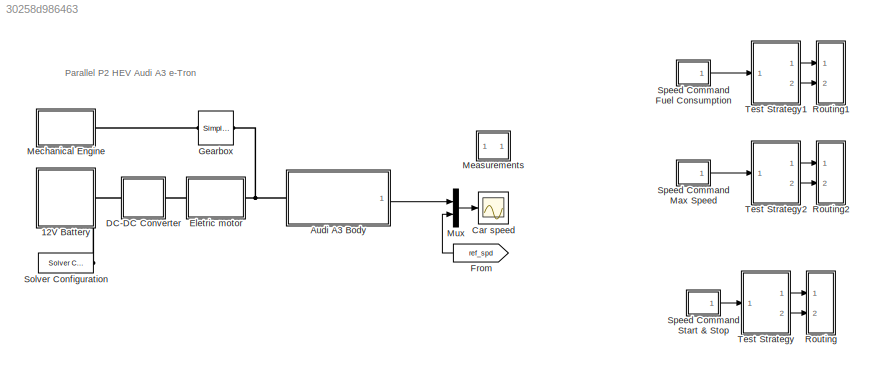
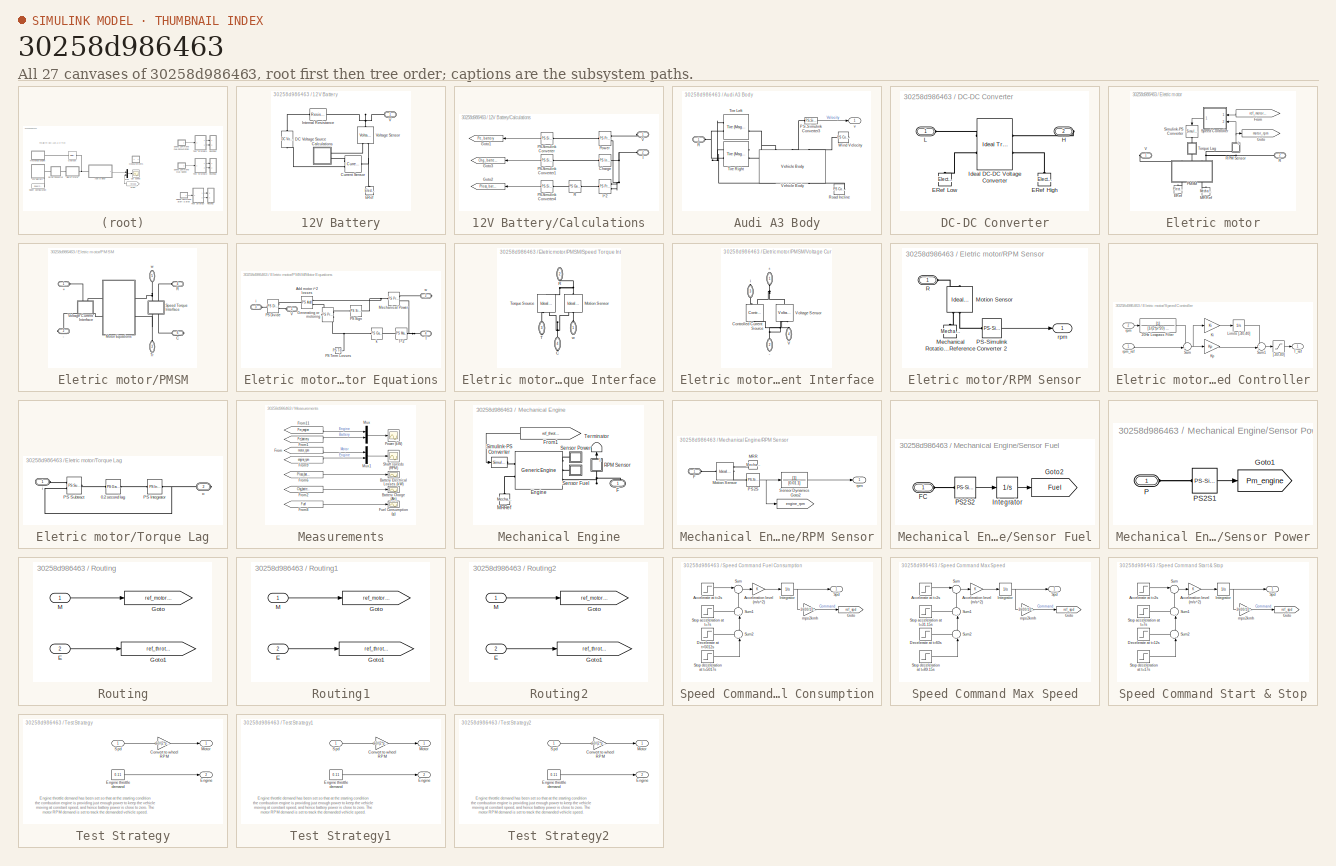
[diagram: thumbnail index - all 27 canvases of the model, root first then tree order]
MODEL slx_30258d986463
KIND model
CONFIG AbsTol = 1e-3
CONFIG EnableMultiTasking = on
CONFIG FixedStep = auto
CONFIG MaxStep = auto
CONFIG MinStep = auto
CONFIG RelTol = 1e-3
CONFIG SampleTimeConstraint = Unconstrained
CONFIG Solver = VariableStepAuto
CONFIG SolverName = VariableStepAuto
CONFIG StartTime = 0.0
CONFIG StopTime = 100
WORKSPACE source: MATLAB code (in-file)
WORKSPACE v0 = 15
WORKSPACE wheel_radius = 0.3
WORKSPACE k = 1e-2  (= 0.01)
WORKSPACE t_torque = 0.02
WORKSPACE gear_ratio = 4.27
BLOCK [SubSystem] 12V Battery
  Ports = [0, 0, 0, 0, 0, 1]
  RequestExecContextInheritance = off
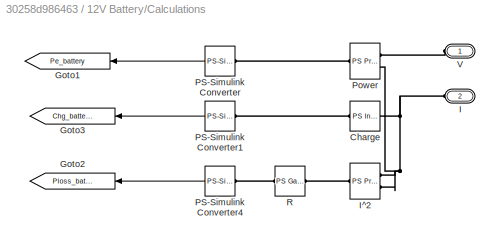
BLOCK [SubSystem] 12V Battery/Calculations
  Ports = [0, 0, 0, 0, 0, 2]
  RequestExecContextInheritance = off
BLOCK [Reference] 12V Battery/Calculations/Charge  REF=fl_lib/Physical Signals/Linear Operators/PS Integrator
  Ports = [0, 0, 0, 0, 0, 1, 1]
  SourceBlock = fl_lib/Physical Signals/Linear Operators/PS Integrator
  SourceProductBaseCode = SS
  SourceProductName = Simscape
  SourceType = PS Integrator
BLOCK [Goto] 12V Battery/Calculations/Goto1
  GotoTag = Pe_battery
  TagVisibility = global
BLOCK [Goto] 12V Battery/Calculations/Goto2
  GotoTag = Ploss_battery
  TagVisibility = global
BLOCK [Goto] 12V Battery/Calculations/Goto3
  GotoTag = Chg_battery
  TagVisibility = global
BLOCK [PMIOPort] 12V Battery/Calculations/I
  Port = 2
  Side = Left
BLOCK [Reference] 12V Battery/Calculations/I^2  REF=fl_lib/Physical Signals/Functions/PS Product
  Ports = [0, 0, 0, 0, 0, 2, 1]
  SourceBlock = fl_lib/Physical Signals/Functions/PS Product
  SourceProductBaseCode = SS
  SourceProductName = Simscape
  SourceType = PS Product
BLOCK [Reference] 12V Battery/Calculations/PS-Simulink Converter  REF=nesl_utility/PS-Simulink
Converter
  Ports = [0, 1, 0, 0, 0, 1]
  SourceBlock = nesl_utility/PS-Simulink\nConverter
  SourceProductBaseCode = SS
  SourceProductName = Simscape
  SourceType = PS-Simulink\nConverter
BLOCK [Reference] 12V Battery/Calculations/PS-Simulink Converter1  REF=nesl_utility/PS-Simulink
Converter
  Ports = [0, 1, 0, 0, 0, 1]
  SourceBlock = nesl_utility/PS-Simulink\nConverter
  SourceProductBaseCode = SS
  SourceProductName = Simscape
  SourceType = PS-Simulink\nConverter
BLOCK [Reference] 12V Battery/Calculations/PS-Simulink Converter4  REF=nesl_utility/PS-Simulink
Converter
  Ports = [0, 1, 0, 0, 0, 1]
  SourceBlock = nesl_utility/PS-Simulink\nConverter
  SourceProductBaseCode = SS
  SourceProductName = Simscape
  SourceType = PS-Simulink\nConverter
BLOCK [Reference] 12V Battery/Calculations/Power  REF=fl_lib/Physical Signals/Functions/PS Product
  Ports = [0, 0, 0, 0, 0, 2, 1]
  SourceBlock = fl_lib/Physical Signals/Functions/PS Product
  SourceProductBaseCode = SS
  SourceProductName = Simscape
  SourceType = PS Product
BLOCK [Reference] 12V Battery/Calculations/R  REF=fl_lib/Physical Signals/Functions/PS Gain
  Ports = [0, 0, 0, 0, 0, 1, 1]
  SourceBlock = fl_lib/Physical Signals/Functions/PS Gain
  SourceProductBaseCode = SS
  SourceProductName = Simscape
  SourceType = PS Gain
BLOCK [PMIOPort] 12V Battery/Calculations/V
  Side = Left
BLOCK [Reference] 12V Battery/Current Sensor  REF=fl_lib/Electrical/Electrical Sensors/Current Sensor
  Ports = [0, 0, 0, 0, 0, 1, 2]
  SourceBlock = fl_lib/Electrical/Electrical Sensors/Current Sensor
  SourceProductBaseCode = SS
  SourceProductName = Simscape
  SourceType = Current Sensor
BLOCK [Reference] 12V Battery/DC Voltage Source  REF=fl_lib/Electrical/Electrical Sources/DC Voltage Source
  Ports = [0, 0, 0, 0, 0, 1, 1]
  SourceBlock = fl_lib/Electrical/Electrical Sources/DC Voltage Source
  SourceProductBaseCode = SS
  SourceProductName = Simscape
  SourceType = DC Voltage Source
BLOCK [Reference] 12V Battery/ERef  REF=fl_lib/Electrical/Electrical Elements/Electrical Reference
  Ports = [0, 0, 0, 0, 0, 1]
  SourceBlock = fl_lib/Electrical/Electrical Elements/Electrical Reference
  SourceProductBaseCode = SS
  SourceProductName = Simscape
  SourceType = Electrical Reference
BLOCK [Reference] 12V Battery/Internal Resistance  REF=fl_lib/Electrical/Electrical Elements/Resistor
  Ports = [0, 0, 0, 0, 0, 1, 1]
  SourceBlock = fl_lib/Electrical/Electrical Elements/Resistor
  SourceProductBaseCode = SS
  SourceProductName = Simscape
  SourceType = Resistor
BLOCK [PMIOPort] 12V Battery/V
  Side = Left
BLOCK [Reference] 12V Battery/Voltage Sensor  REF=fl_lib/Electrical/Electrical Sensors/Voltage Sensor
  Ports = [0, 0, 0, 0, 0, 1, 2]
  SourceBlock = fl_lib/Electrical/Electrical Sensors/Voltage Sensor
  SourceProductBaseCode = SS
  SourceProductName = Simscape
  SourceType = Voltage Sensor
BLOCK [SubSystem] Audi A3 Body
  Ports = [0, 1, 0, 0, 0, 1]
  RequestExecContextInheritance = off
BLOCK [Reference] Audi A3 Body/PS-Simulink Converter3  REF=nesl_utility/PS-Simulink
Converter
  Ports = [0, 1, 0, 0, 0, 1]
  SourceBlock = nesl_utility/PS-Simulink\nConverter
  SourceProductBaseCode = SS
  SourceProductName = Simscape
  SourceType = PS-Simulink\nConverter
BLOCK [PMIOPort] Audi A3 Body/R
  Side = Left
BLOCK [Reference] Audi A3 Body/Road Incline  REF=fl_lib/Physical Signals/Sources/PS Constant
  Ports = [0, 0, 0, 0, 0, 0, 1]
  SourceBlock = fl_lib/Physical Signals/Sources/PS Constant
  SourceProductBaseCode = SS
  SourceProductName = Simscape
  SourceType = PS Constant
BLOCK [Reference] Audi A3 Body/Tire Left  REF=sdl_lib/Tires & Vehicles/Tire (Magic Formula)
  Ports = [0, 0, 0, 0, 0, 2, 2]
  SourceBlock = sdl_lib/Tires & Vehicles/Tire (Magic Formula)
  SourceProductBaseCode = LD
  SourceProductName = Simscape Driveline
  SourceType = Tire (Magic Formula)
BLOCK [Reference] Audi A3 Body/Tire Right  REF=sdl_lib/Tires & Vehicles/Tire (Magic Formula)
  Ports = [0, 0, 0, 0, 0, 2, 2]
  SourceBlock = sdl_lib/Tires & Vehicles/Tire (Magic Formula)
  SourceProductBaseCode = LD
  SourceProductName = Simscape Driveline
  SourceType = Tire (Magic Formula)
BLOCK [Reference] Audi A3 Body/Vehicle Body  REF=sdl_lib/Tires & Vehicles/Vehicle Body
  Ports = [0, 0, 0, 0, 0, 3, 3]
  SourceBlock = sdl_lib/Tires & Vehicles/Vehicle Body
  SourceProductBaseCode = LD
  SourceProductName = Simscape Driveline
  SourceType = Vehicle Body
BLOCK [Reference] Audi A3 Body/Wind Velocity  REF=fl_lib/Physical Signals/Sources/PS Constant
  Ports = [0, 0, 0, 0, 0, 0, 1]
  SourceBlock = fl_lib/Physical Signals/Sources/PS Constant
  SourceProductBaseCode = SS
  SourceProductName = Simscape
  SourceType = PS Constant
BLOCK [Outport] Audi A3 Body/v
  IconDisplay = Port number
  VectorParamsAs1DForOutWhenUnconnected = off
BLOCK [Scope] Car speed
  Floating = off
  NumInputPorts = 1
  Ports = [1]
  ScopeSpecificationString = Simulink.scopes.TimeScopeBlockCfg('CurrentConfiguration', extmgr.ConfigurationSet(extmgr.Configuration('Core','General UI',true),extmgr.Configuration('Core','Source UI',true),extmgr.Configuration('Sources','WiredSimulink',true,'DataLoggingSaveFormat','StructureWithTime','DataLoggingMaxPoints','50000','DataLoggingLimitDataPoints',true,'DataLoggingDecimation','1','DataLoggingDecimateData',true),extm...<+1980ch>
BLOCK [SubSystem] DC-DC Converter
  Ports = [0, 0, 0, 0, 0, 1, 1]
  RequestExecContextInheritance = off
BLOCK [Reference] DC-DC Converter/ERef High  REF=fl_lib/Electrical/Electrical Elements/Electrical Reference
  Ports = [0, 0, 0, 0, 0, 1]
  SourceBlock = fl_lib/Electrical/Electrical Elements/Electrical Reference
  SourceProductBaseCode = SS
  SourceProductName = Simscape
  SourceType = Electrical Reference
BLOCK [Reference] DC-DC Converter/ERef Low  REF=fl_lib/Electrical/Electrical Elements/Electrical Reference
  Ports = [0, 0, 0, 0, 0, 1]
  SourceBlock = fl_lib/Electrical/Electrical Elements/Electrical Reference
  SourceProductBaseCode = SS
  SourceProductName = Simscape
  SourceType = Electrical Reference
BLOCK [PMIOPort] DC-DC Converter/H
  Port = 2
  Side = Right
BLOCK [Reference] DC-DC Converter/Ideal DC-DC Voltage Converter  REF=fl_lib/Electrical/Electrical Elements/Ideal Transformer
  Ports = [0, 0, 0, 0, 0, 2, 2]
  SourceBlock = fl_lib/Electrical/Electrical Elements/Ideal Transformer
  SourceProductBaseCode = SS
  SourceProductName = Simscape
  SourceType = Ideal Transformer
BLOCK [PMIOPort] DC-DC Converter/L
  Side = Left
  Tag = PMCPort
BLOCK [SubSystem] Eletric motor
  Ports = [0, 0, 0, 0, 0, 1, 1]
  RequestExecContextInheritance = off
BLOCK [Reference] Eletric motor/ERef  REF=fl_lib/Electrical/Electrical Elements/Electrical Reference
  Ports = [0, 0, 0, 0, 0, 1]
  SourceBlock = fl_lib/Electrical/Electrical Elements/Electrical Reference
  SourceProductBaseCode = SS
  SourceProductName = Simscape
  SourceType = Electrical Reference
BLOCK [From] Eletric motor/From
  GotoTag = ref_motor_rpm
  TagVisibility = global
BLOCK [Goto] Eletric motor/Goto
  GotoTag = motor_rpm
  TagVisibility = global
BLOCK [Reference] Eletric motor/MRRef  REF=fl_lib/Mechanical/Rotational Elements/Mechanical
Rotational Reference
  Ports = [0, 0, 0, 0, 0, 1]
  SourceBlock = fl_lib/Mechanical/Rotational Elements/Mechanical\nRotational Reference
  SourceProductBaseCode = SS
  SourceProductName = Simscape
  SourceType = Mechanical\nRotational Reference
BLOCK [SubSystem] Eletric motor/PMSM
  Ports = [0, 0, 0, 0, 0, 3, 3]
  RequestExecContextInheritance = off
BLOCK [PMIOPort] Eletric motor/PMSM/+
  Side = Left
BLOCK [PMIOPort] Eletric motor/PMSM/-
  Port = 2
  Side = Right
BLOCK [PMIOPort] Eletric motor/PMSM/C
  Port = 6
  Side = Right
BLOCK [SubSystem] Eletric motor/PMSM/Motor Equations
  Ports = [0, 0, 0, 0, 0, 2, 2]
  RequestExecContextInheritance = off
BLOCK [Reference] Eletric motor/PMSM/Motor Equations/Add motor i^2 losses  REF=fl_lib/Physical Signals/Functions/PS Add
  Ports = [0, 0, 0, 0, 0, 2, 1]
  SourceBlock = fl_lib/Physical Signals/Functions/PS Add
  SourceProductBaseCode = SS
  SourceProductName = Simscape
  SourceType = PS Add
BLOCK [Reference] Eletric motor/PMSM/Motor Equations/Generating or motoring  REF=fl_lib/Physical Signals/Functions/PS Product
  Ports = [0, 0, 0, 0, 0, 2, 1]
  SourceBlock = fl_lib/Physical Signals/Functions/PS Product
  SourceProductBaseCode = SS
  SourceProductName = Simscape
  SourceType = PS Product
BLOCK [Reference] Eletric motor/PMSM/Motor Equations/Mechanical Power  REF=fl_lib/Physical Signals/Functions/PS Product
  Ports = [0, 0, 0, 0, 0, 2, 1]
  SourceBlock = fl_lib/Physical Signals/Functions/PS Product
  SourceProductBaseCode = SS
  SourceProductName = Simscape
  SourceType = PS Product
BLOCK [Reference] Eletric motor/PMSM/Motor Equations/PS Divide  REF=fl_lib/Physical Signals/Functions/PS Divide
  Ports = [0, 0, 0, 0, 0, 2, 1]
  SourceBlock = fl_lib/Physical Signals/Functions/PS Divide
  SourceProductBaseCode = SS
  SourceProductName = Simscape
  SourceType = PS Divide
BLOCK [Reference] Eletric motor/PMSM/Motor Equations/PS Sign  REF=fl_lib/Physical Signals/Nonlinear Operators/PS Sign
  Ports = [0, 0, 0, 0, 0, 1, 1]
  SourceBlock = fl_lib/Physical Signals/Nonlinear Operators/PS Sign
  SourceProductBaseCode = SS
  SourceProductName = Simscape
  SourceType = PS Sign
BLOCK [Reference] Eletric motor/PMSM/Motor Equations/PS Term Losses  REF=fl_lib/Physical Signals/Sinks/PS Terminator
  Ports = [0, 0, 0, 0, 0, 1]
  SourceBlock = fl_lib/Physical Signals/Sinks/PS Terminator
  SourceProductBaseCode = SS
  SourceProductName = Simscape
  SourceType = PS Terminator
BLOCK [PMIOPort] Eletric motor/PMSM/Motor Equations/T
  Port = 4
  Side = Right
BLOCK [Reference] Eletric motor/PMSM/Motor Equations/T^2  REF=fl_lib/Physical Signals/Functions/PS Math Function
  Ports = [0, 0, 0, 0, 0, 1, 1]
  SourceBlock = fl_lib/Physical Signals/Functions/PS Math Function
  SourceProductBaseCode = SS
  SourceProductName = Simscape
  SourceType = PS Math Function
BLOCK [PMIOPort] Eletric motor/PMSM/Motor Equations/V
  Side = Left
BLOCK [PMIOPort] Eletric motor/PMSM/Motor Equations/i
  Port = 3
  Side = Left
BLOCK [Reference] Eletric motor/PMSM/Motor Equations/k  REF=fl_lib/Physical Signals/Functions/PS Gain
  Ports = [0, 0, 0, 0, 0, 1, 1]
  SourceBlock = fl_lib/Physical Signals/Functions/PS Gain
  SourceProductBaseCode = SS
  SourceProductName = Simscape
  SourceType = PS Gain
BLOCK [PMIOPort] Eletric motor/PMSM/Motor Equations/w
  Port = 2
  Side = Right
BLOCK [PMIOPort] Eletric motor/PMSM/R
  Port = 4
  Side = Left
BLOCK [SubSystem] Eletric motor/PMSM/Speed Torque Interface
  Ports = [0, 0, 0, 0, 0, 2, 2]
  RequestExecContextInheritance = off
BLOCK [PMIOPort] Eletric motor/PMSM/Speed Torque Interface/C
  Port = 4
  Side = Right
BLOCK [Reference] Eletric motor/PMSM/Speed Torque Interface/Motion Sensor  REF=fl_lib/Mechanical/Mechanical Sensors/Ideal Rotational
Motion Sensor
  Ports = [0, 0, 0, 0, 0, 1, 3]
  SourceBlock = fl_lib/Mechanical/Mechanical Sensors/Ideal Rotational\nMotion Sensor
  SourceProductBaseCode = SS
  SourceProductName = Simscape
  SourceType = Ideal Rotational\nMotion Sensor
BLOCK [PMIOPort] Eletric motor/PMSM/Speed Torque Interface/R
  Port = 2
  Side = Left
BLOCK [PMIOPort] Eletric motor/PMSM/Speed Torque Interface/T
  Port = 3
  Side = Right
BLOCK [Reference] Eletric motor/PMSM/Speed Torque Interface/Torque Source  REF=fl_lib/Mechanical/Mechanical Sources/Ideal Torque Source
  Ports = [0, 0, 0, 0, 0, 1, 2]
  SourceBlock = fl_lib/Mechanical/Mechanical Sources/Ideal Torque Source
  SourceProductBaseCode = SS
  SourceProductName = Simscape
  SourceType = Ideal Torque Source
BLOCK [PMIOPort] Eletric motor/PMSM/Speed Torque Interface/w
  Side = Left
BLOCK [PMIOPort] Eletric motor/PMSM/Tr
  Port = 3
  Side = Left
BLOCK [SubSystem] Eletric motor/PMSM/Voltage Current Interface
  Ports = [0, 0, 0, 0, 0, 2, 2]
  RequestExecContextInheritance = off
BLOCK [PMIOPort] Eletric motor/PMSM/Voltage Current Interface/+
  Side = Left
BLOCK [PMIOPort] Eletric motor/PMSM/Voltage Current Interface/-
  Port = 2
  Side = Right
BLOCK [Reference] Eletric motor/PMSM/Voltage Current Interface/Controlled Current Source  REF=fl_lib/Electrical/Electrical Sources/Controlled Current
Source
  Ports = [0, 0, 0, 0, 0, 1, 2]
  SourceBlock = fl_lib/Electrical/Electrical Sources/Controlled Current\nSource
  SourceProductBaseCode = SS
  SourceProductName = Simscape
  SourceType = Controlled Current\nSource
BLOCK [PMIOPort] Eletric motor/PMSM/Voltage Current Interface/V
  Port = 4
  Side = Left
BLOCK [Reference] Eletric motor/PMSM/Voltage Current Interface/Voltage Sensor  REF=fl_lib/Electrical/Electrical Sensors/Voltage Sensor
  Ports = [0, 0, 0, 0, 0, 1, 2]
  SourceBlock = fl_lib/Electrical/Electrical Sensors/Voltage Sensor
  SourceProductBaseCode = SS
  SourceProductName = Simscape
  SourceType = Voltage Sensor
BLOCK [PMIOPort] Eletric motor/PMSM/Voltage Current Interface/i
  Port = 3
  Side = Right
BLOCK [PMIOPort] Eletric motor/PMSM/w
  Port = 5
  Side = Right
BLOCK [PMIOPort] Eletric motor/R
  Port = 2
  Side = Left
BLOCK [SubSystem] Eletric motor/RPM Sensor
  Ports = [0, 1, 0, 0, 0, 1]
  RequestExecContextInheritance = off
BLOCK [Reference] Eletric motor/RPM Sensor/Mechanical Rotational Reference  REF=fl_lib/Mechanical/Rotational Elements/Mechanical
Rotational Reference
  Ports = [0, 0, 0, 0, 0, 1]
  SourceBlock = fl_lib/Mechanical/Rotational Elements/Mechanical\nRotational Reference
  SourceProductBaseCode = SS
  SourceProductName = Simscape
  SourceType = Mechanical\nRotational Reference
BLOCK [Reference] Eletric motor/RPM Sensor/Motion Sensor  REF=fl_lib/Mechanical/Mechanical Sensors/Ideal Rotational
Motion Sensor
  Ports = [0, 0, 0, 0, 0, 1, 3]
  SourceBlock = fl_lib/Mechanical/Mechanical Sensors/Ideal Rotational\nMotion Sensor
  SourceProductBaseCode = SS
  SourceProductName = Simscape
  SourceType = Ideal Rotational\nMotion Sensor
BLOCK [Reference] Eletric motor/RPM Sensor/PS-Simulink Converter 2  REF=nesl_utility/PS-Simulink
Converter
  Ports = [0, 1, 0, 0, 0, 1]
  SourceBlock = nesl_utility/PS-Simulink\nConverter
  SourceProductBaseCode = SS
  SourceProductName = Simscape
  SourceType = PS-Simulink\nConverter
BLOCK [PMIOPort] Eletric motor/RPM Sensor/R
  Side = Left
BLOCK [Outport] Eletric motor/RPM Sensor/rpm
  IconDisplay = Port number
  VectorParamsAs1DForOutWhenUnconnected = off
BLOCK [Reference] Eletric motor/Simulink-PS Converter  REF=nesl_utility/Simulink-PS
Converter
  Ports = [1, 0, 0, 0, 0, 0, 1]
  SourceBlock = nesl_utility/Simulink-PS\nConverter
  SourceProductBaseCode = SS
  SourceProductName = Simscape
  SourceType = Simulink-PS\nConverter
BLOCK [SubSystem] Eletric motor/Speed Controller
  Ports = [2, 1]
  RequestExecContextInheritance = off
BLOCK [TransferFcn] Eletric motor/Speed Controller/20Hz Lowpass Filter
  Denominator = [1/(2*pi*20) 1]
BLOCK [Gain] Eletric motor/Speed Controller/Ki
  Gain = Ki
  OutDataTypeStr = Inherit: Inherit via internal rule
  ParamDataTypeStr = Inherit: Inherit via internal rule
  SaturateOnIntegerOverflow = off
BLOCK [Gain] Eletric motor/Speed Controller/Kp
  Gain = Kp
  OutDataTypeStr = Inherit: Inherit via internal rule
  ParamDataTypeStr = Inherit: Inherit via internal rule
  SaturateOnIntegerOverflow = off
BLOCK [Integrator] Eletric motor/Speed Controller/Limits [-40,40]
  LimitOutput = on
  LowerSaturationLimit = -40
  Ports = [1, 1]
  UpperSaturationLimit = 40
BLOCK [Sum] Eletric motor/Speed Controller/Sum
  IconShape = round
  InputSameDT = off
  Inputs = -+|
  OutDataTypeStr = Inherit: Inherit via internal rule
  Ports = [2, 1]
  SaturateOnIntegerOverflow = off
BLOCK [Sum] Eletric motor/Speed Controller/Sum1
  IconShape = round
  InputSameDT = off
  Inputs = ++|
  OutDataTypeStr = Inherit: Inherit via internal rule
  Ports = [2, 1]
  SaturateOnIntegerOverflow = off
BLOCK [Outport] Eletric motor/Speed Controller/T_ref
  IconDisplay = Port number
  VectorParamsAs1DForOutWhenUnconnected = off
BLOCK [Saturate] Eletric motor/Speed Controller/[-40,40]
  InputPortMap = u0
  LowerLimit = speed_controller_lower_limit
  Ports = [1, 1]
  UpperLimit = speed_controller_upper_limit
BLOCK [Inport] Eletric motor/Speed Controller/rpm
  IconDisplay = Port number
  Port = 2
BLOCK [Inport] Eletric motor/Speed Controller/rpm_ref
  IconDisplay = Port number
BLOCK [SubSystem] Eletric motor/Torque Lag
  Ports = [0, 0, 0, 0, 0, 1, 1]
  RequestExecContextInheritance = off
BLOCK [Reference] Eletric motor/Torque Lag/0.2 second lag  REF=fl_lib/Physical Signals/Functions/PS Gain
  Ports = [0, 0, 0, 0, 0, 1, 1]
  SourceBlock = fl_lib/Physical Signals/Functions/PS Gain
  SourceProductBaseCode = SS
  SourceProductName = Simscape
  SourceType = PS Gain
BLOCK [Reference] Eletric motor/Torque Lag/PS Integrator  REF=fl_lib/Physical Signals/Linear Operators/PS Integrator
  Ports = [0, 0, 0, 0, 0, 1, 1]
  SourceBlock = fl_lib/Physical Signals/Linear Operators/PS Integrator
  SourceProductBaseCode = SS
  SourceProductName = Simscape
  SourceType = PS Integrator
BLOCK [Reference] Eletric motor/Torque Lag/PS Subtract  REF=fl_lib/Physical Signals/Functions/PS Subtract
  Ports = [0, 0, 0, 0, 0, 2, 1]
  SourceBlock = fl_lib/Physical Signals/Functions/PS Subtract
  SourceProductBaseCode = SS
  SourceProductName = Simscape
  SourceType = PS Subtract
BLOCK [PMIOPort] Eletric motor/Torque Lag/i
  Side = Left
BLOCK [PMIOPort] Eletric motor/Torque Lag/o
  Port = 2
  Side = Right
BLOCK [PMIOPort] Eletric motor/V
  Side = Right
BLOCK [From] From
  GotoTag = ref_spd
  TagVisibility = global
BLOCK [Reference] Gearbox  REF=sdl_lib/Gears/Simple Gear
  Ports = [0, 0, 0, 0, 0, 1, 1]
  SourceBlock = sdl_lib/Gears/Simple Gear
  SourceProductBaseCode = LD
  SourceProductName = Simscape Driveline
  SourceType = Simple Gear
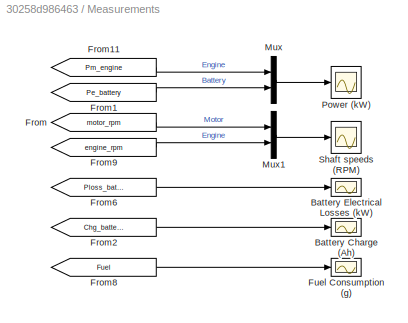
BLOCK [SubSystem] Measurements
  Ports = []
  RequestExecContextInheritance = off
BLOCK [Scope] Measurements/Battery Charge (Ah)
  Floating = off
  NumInputPorts = 1
  Ports = [1]
  ScopeSpecificationString = Simulink.scopes.TimeScopeBlockCfg('CurrentConfiguration', extmgr.ConfigurationSet(extmgr.Configuration('Core','General UI',true),extmgr.Configuration('Core','Source UI',true),extmgr.Configuration('Sources','WiredSimulink',true,'DataLoggingSaveFormat','StructureWithTime','DataLoggingLimitDataPoints',true,'DataLoggingDecimation','1','DataLoggingDecimateData',true,'DataLoggingVariableName','ScopeData...<+1808ch>
BLOCK [Scope] Measurements/Battery Electrical Losses (kW)
  Floating = off
  NumInputPorts = 1
  Ports = [1]
  ScopeSpecificationString = Simulink.scopes.TimeScopeBlockCfg('CurrentConfiguration', extmgr.ConfigurationSet(extmgr.Configuration('Core','General UI',true),extmgr.Configuration('Core','Source UI',true),extmgr.Configuration('Sources','WiredSimulink',true,'DataLoggingVariableName','ScopeData3','DataLoggingSaveFormat','StructureWithTime','DataLoggingMaxPoints','50000','DataLoggingLimitDataPoints',true,'DataLoggingDecimation','...<+1859ch>
BLOCK [From] Measurements/From
  GotoTag = motor_rpm
  TagVisibility = global
BLOCK [From] Measurements/From1
  GotoTag = Pe_battery
  TagVisibility = global
BLOCK [From] Measurements/From11
  GotoTag = Pm_engine
  TagVisibility = global
BLOCK [From] Measurements/From2
  GotoTag = Chg_battery
  TagVisibility = global
BLOCK [From] Measurements/From6
  GotoTag = Ploss_battery
  TagVisibility = global
BLOCK [From] Measurements/From8
  GotoTag = Fuel
  TagVisibility = global
BLOCK [From] Measurements/From9
  GotoTag = engine_rpm
  TagVisibility = global
BLOCK [Scope] Measurements/Fuel Consumption (g)
  Floating = off
  NumInputPorts = 1
  Ports = [1]
  ScopeSpecificationString = Simulink.scopes.TimeScopeBlockCfg('CurrentConfiguration', extmgr.ConfigurationSet(extmgr.Configuration('Core','General UI',true),extmgr.Configuration('Core','Source UI',true),extmgr.Configuration('Sources','WiredSimulink',true,'DataLoggingVariableName','ScopeData5','DataLoggingSaveFormat','StructureWithTime','DataLoggingMaxPoints','50000','DataLoggingLimitDataPoints',true,'DataLoggingDecimation','...<+1847ch>
BLOCK [Mux] Measurements/Mux
  DisplayOption = bar
  Inputs = 2
  Ports = [2, 1]
BLOCK [Mux] Measurements/Mux1
  DisplayOption = bar
  Inputs = 2
  Ports = [2, 1]
BLOCK [Scope] Measurements/Power (kW)
  Floating = off
  NumInputPorts = 1
  Ports = [1]
  ScopeSpecificationString = Simulink.scopes.TimeScopeBlockCfg('CurrentConfiguration', extmgr.ConfigurationSet(extmgr.Configuration('Core','General UI',true,'FigureColor',[1 1 1]),extmgr.Configuration('Core','Source UI',true),extmgr.Configuration('Sources','WiredSimulink',true,'DataLoggingVariableName','ScopeData8','DataLoggingSaveFormat','StructureWithTime','DataLoggingMaxPoints','50000','DataLoggingLimitDataPoints',true,'Da...<+1822ch>
BLOCK [Scope] Measurements/Shaft speeds (RPM)
  Floating = off
  NumInputPorts = 1
  Ports = [1]
  ScopeSpecificationString = Simulink.scopes.TimeScopeBlockCfg('CurrentConfiguration', extmgr.ConfigurationSet(extmgr.Configuration('Core','General UI',true),extmgr.Configuration('Core','Source UI',true),extmgr.Configuration('Sources','WiredSimulink',true,'DataLoggingVariableName','ScopeData1','DataLoggingSaveFormat','StructureWithTime','DataLoggingMaxPoints','50000','DataLoggingLimitDataPoints',true,'DataLoggingDecimation','...<+1802ch>
BLOCK [SubSystem] Mechanical Engine
  Ports = [0, 0, 0, 0, 0, 0, 1]
  RequestExecContextInheritance = off
BLOCK [Reference] Mechanical Engine/Engine  REF=sdl_lib/Engines/Generic Engine
  Ports = [0, 0, 0, 0, 0, 2, 3]
  SourceBlock = sdl_lib/Engines/Generic Engine
  SourceProductBaseCode = LD
  SourceProductName = Simscape Driveline
  SourceType = Generic Engine
BLOCK [PMIOPort] Mechanical Engine/F
  Side = Right
BLOCK [From] Mechanical Engine/From1
  GotoTag = ref_throttle
  TagVisibility = global
BLOCK [Reference] Mechanical Engine/MRRef  REF=fl_lib/Mechanical/Rotational Elements/Mechanical
Rotational Reference
  Ports = [0, 0, 0, 0, 0, 1]
  SourceBlock = fl_lib/Mechanical/Rotational Elements/Mechanical\nRotational Reference
  SourceProductBaseCode = SS
  SourceProductName = Simscape
  SourceType = Mechanical\nRotational Reference
BLOCK [SubSystem] Mechanical Engine/RPM Sensor
  Ports = [0, 1, 0, 0, 0, 1]
  RequestExecContextInheritance = off
BLOCK [PMIOPort] Mechanical Engine/RPM Sensor/F
  Side = Left
BLOCK [Goto] Mechanical Engine/RPM Sensor/Goto2
  GotoTag = engine_rpm
  TagVisibility = global
BLOCK [Reference] Mechanical Engine/RPM Sensor/MRR  REF=fl_lib/Mechanical/Rotational Elements/Mechanical
Rotational Reference
  Ports = [0, 0, 0, 0, 0, 1]
  SourceBlock = fl_lib/Mechanical/Rotational Elements/Mechanical\nRotational Reference
  SourceProductBaseCode = SS
  SourceProductName = Simscape
  SourceType = Mechanical\nRotational Reference
BLOCK [Reference] Mechanical Engine/RPM Sensor/Motion Sensor  REF=fl_lib/Mechanical/Mechanical Sensors/Ideal Rotational
Motion Sensor
  Ports = [0, 0, 0, 0, 0, 1, 3]
  SourceBlock = fl_lib/Mechanical/Mechanical Sensors/Ideal Rotational\nMotion Sensor
  SourceProductBaseCode = SS
  SourceProductName = Simscape
  SourceType = Ideal Rotational\nMotion Sensor
BLOCK [Reference] Mechanical Engine/RPM Sensor/PS2S  REF=nesl_utility/PS-Simulink
Converter
  Ports = [0, 1, 0, 0, 0, 1]
  SourceBlock = nesl_utility/PS-Simulink\nConverter
  SourceProductBaseCode = SS
  SourceProductName = Simscape
  SourceType = PS-Simulink\nConverter
BLOCK [TransferFcn] Mechanical Engine/RPM Sensor/Sensor Dynamics
  Denominator = [0.01 1]
BLOCK [Outport] Mechanical Engine/RPM Sensor/rpm
  IconDisplay = Port number
  VectorParamsAs1DForOutWhenUnconnected = off
BLOCK [SubSystem] Mechanical Engine/Sensor Fuel
  Ports = [0, 0, 0, 0, 0, 1]
  RequestExecContextInheritance = off
BLOCK [PMIOPort] Mechanical Engine/Sensor Fuel/FC
  Side = Left
BLOCK [Goto] Mechanical Engine/Sensor Fuel/Goto2
  GotoTag = Fuel
  TagVisibility = global
BLOCK [Integrator] Mechanical Engine/Sensor Fuel/Integrator
  Ports = [1, 1]
BLOCK [Reference] Mechanical Engine/Sensor Fuel/PS2S2  REF=nesl_utility/PS-Simulink
Converter
  Ports = [0, 1, 0, 0, 0, 1]
  SourceBlock = nesl_utility/PS-Simulink\nConverter
  SourceProductBaseCode = SS
  SourceProductName = Simscape
  SourceType = PS-Simulink\nConverter
BLOCK [SubSystem] Mechanical Engine/Sensor Power
  Ports = [0, 0, 0, 0, 0, 1]
  RequestExecContextInheritance = off
BLOCK [Goto] Mechanical Engine/Sensor Power/Goto1
  GotoTag = Pm_engine
  TagVisibility = global
BLOCK [PMIOPort] Mechanical Engine/Sensor Power/P
  Side = Left
BLOCK [Reference] Mechanical Engine/Sensor Power/PS2S1  REF=nesl_utility/PS-Simulink
Converter
  Ports = [0, 1, 0, 0, 0, 1]
  SourceBlock = nesl_utility/PS-Simulink\nConverter
  SourceProductBaseCode = SS
  SourceProductName = Simscape
  SourceType = PS-Simulink\nConverter
BLOCK [Reference] Mechanical Engine/Simulink-PS Converter  REF=nesl_utility/Simulink-PS
Converter
  Ports = [1, 0, 0, 0, 0, 0, 1]
  SourceBlock = nesl_utility/Simulink-PS\nConverter
  SourceProductBaseCode = SS
  SourceProductName = Simscape
  SourceType = Simulink-PS\nConverter
BLOCK [Terminator] Mechanical Engine/Terminator
BLOCK [Mux] Mux
  DisplayOption = bar
  Inputs = 2
  Ports = [2, 1]
BLOCK [SubSystem] Routing
  Commented = on
  Ports = [2]
  RequestExecContextInheritance = off
BLOCK [Inport] Routing/E
  IconDisplay = Port number
  Port = 2
BLOCK [Goto] Routing/Goto
  GotoTag = ref_motor_rpm
  TagVisibility = global
BLOCK [Goto] Routing/Goto1
  GotoTag = ref_throttle
  TagVisibility = global
BLOCK [Inport] Routing/M
  IconDisplay = Port number
BLOCK [SubSystem] Routing1
  Commented = on
  Ports = [2]
  RequestExecContextInheritance = off
BLOCK [Inport] Routing1/E
  IconDisplay = Port number
  Port = 2
BLOCK [Goto] Routing1/Goto
  GotoTag = ref_motor_rpm
  TagVisibility = global
BLOCK [Goto] Routing1/Goto1
  GotoTag = ref_throttle
  TagVisibility = global
BLOCK [Inport] Routing1/M
  IconDisplay = Port number
BLOCK [SubSystem] Routing2
  Ports = [2]
  RequestExecContextInheritance = off
BLOCK [Inport] Routing2/E
  IconDisplay = Port number
  Port = 2
BLOCK [Goto] Routing2/Goto
  GotoTag = ref_motor_rpm
  TagVisibility = global
BLOCK [Goto] Routing2/Goto1
  GotoTag = ref_throttle
  TagVisibility = global
BLOCK [Inport] Routing2/M
  IconDisplay = Port number
BLOCK [Reference] Solver Configuration  REF=nesl_utility/Solver
Configuration
  Ports = [0, 0, 0, 0, 0, 0, 1]
  SourceBlock = nesl_utility/Solver\nConfiguration
  SourceProductBaseCode = SS
  SourceProductName = Simscape
  SourceType = Solver\nConfiguration
BLOCK [SubSystem] Speed Command Fuel Consumption
  Commented = on
  Ports = [0, 1]
  RequestExecContextInheritance = off
BLOCK [Step] Speed Command Fuel Consumption/Accelerate at t=2s
  SampleTime = 0
  Time = 2
BLOCK [Gain] Speed Command Fuel Consumption/Acceleration level (m//s^2)
  OutDataTypeStr = Inherit: Inherit via internal rule
  ParamDataTypeStr = Inherit: Inherit via internal rule
  SaturateOnIntegerOverflow = off
BLOCK [Step] Speed Command Fuel Consumption/Decelerate at t=5012s
  After = -1
  SampleTime = 0
  Time = 12+5000
BLOCK [Goto] Speed Command Fuel Consumption/Goto
  GotoTag = ref_spd
  TagVisibility = global
BLOCK [Integrator] Speed Command Fuel Consumption/Integrator
  InitialCondition = v0
  Ports = [1, 1]
BLOCK [Outport] Speed Command Fuel Consumption/Spd
  IconDisplay = Port number
  VectorParamsAs1DForOutWhenUnconnected = off
BLOCK [Step] Speed Command Fuel Consumption/Stop acceleration at t=7s
  After = -1
  SampleTime = 0
  Time = 7
BLOCK [Step] Speed Command Fuel Consumption/Stop deceleration at t=5017s
  SampleTime = 0
  Time = 17+5000
BLOCK [Sum] Speed Command Fuel Consumption/Sum
  IconShape = round
  InputSameDT = off
  Inputs = |++
  OutDataTypeStr = Inherit: Inherit via internal rule
  Ports = [2, 1]
  SaturateOnIntegerOverflow = off
BLOCK [Sum] Speed Command Fuel Consumption/Sum1
  IconShape = round
  InputSameDT = off
  Inputs = ++|
  OutDataTypeStr = Inherit: Inherit via internal rule
  Ports = [2, 1]
  SaturateOnIntegerOverflow = off
BLOCK [Sum] Speed Command Fuel Consumption/Sum2
  IconShape = round
  InputSameDT = off
  Inputs = ++|
  OutDataTypeStr = Inherit: Inherit via internal rule
  Ports = [2, 1]
  SaturateOnIntegerOverflow = off
BLOCK [Gain] Speed Command Fuel Consumption/mps2kmh
  Gain = 3600/1000
  OutDataTypeStr = Inherit: Inherit via internal rule
  ParamDataTypeStr = Inherit: Inherit via internal rule
  SaturateOnIntegerOverflow = off
BLOCK [SubSystem] Speed Command Max Speed
  Ports = [0, 1]
  RequestExecContextInheritance = off
BLOCK [Step] Speed Command Max Speed/Accelerate at t=2s
  SampleTime = 0
  Time = 2
BLOCK [Gain] Speed Command Max Speed/Acceleration level (m//s^2)
  OutDataTypeStr = Inherit: Inherit via internal rule
  ParamDataTypeStr = Inherit: Inherit via internal rule
  SaturateOnIntegerOverflow = off
BLOCK [Step] Speed Command Max Speed/Decelerate at t=60s
  After = -1
  SampleTime = 0
  Time = 60
BLOCK [Goto] Speed Command Max Speed/Goto
  GotoTag = ref_spd
  TagVisibility = global
BLOCK [Integrator] Speed Command Max Speed/Integrator
  InitialCondition = v0
  Ports = [1, 1]
BLOCK [Outport] Speed Command Max Speed/Spd
  IconDisplay = Port number
  VectorParamsAs1DForOutWhenUnconnected = off
BLOCK [Step] Speed Command Max Speed/Stop acceleration at t=31.15s 
  After = -1
  SampleTime = 0
  Time = 31.15
BLOCK [Step] Speed Command Max Speed/Stop deceleration at t=89.15s
  SampleTime = 0
  Time = 60+29.15
BLOCK [Sum] Speed Command Max Speed/Sum
  IconShape = round
  InputSameDT = off
  Inputs = |++
  OutDataTypeStr = Inherit: Inherit via internal rule
  Ports = [2, 1]
  SaturateOnIntegerOverflow = off
BLOCK [Sum] Speed Command Max Speed/Sum1
  IconShape = round
  InputSameDT = off
  Inputs = ++|
  OutDataTypeStr = Inherit: Inherit via internal rule
  Ports = [2, 1]
  SaturateOnIntegerOverflow = off
BLOCK [Sum] Speed Command Max Speed/Sum2
  IconShape = round
  InputSameDT = off
  Inputs = ++|
  OutDataTypeStr = Inherit: Inherit via internal rule
  Ports = [2, 1]
  SaturateOnIntegerOverflow = off
BLOCK [Gain] Speed Command Max Speed/mps2kmh
  Gain = 3600/1000
  OutDataTypeStr = Inherit: Inherit via internal rule
  ParamDataTypeStr = Inherit: Inherit via internal rule
  SaturateOnIntegerOverflow = off
BLOCK [SubSystem] Speed Command Start & Stop
  Commented = on
  Ports = [0, 1]
  RequestExecContextInheritance = off
BLOCK [Step] Speed Command Start & Stop/Accelerate at t=2s
  SampleTime = 0
  Time = 2
BLOCK [Gain] Speed Command Start & Stop/Acceleration level (m//s^2)
  OutDataTypeStr = Inherit: Inherit via internal rule
  ParamDataTypeStr = Inherit: Inherit via internal rule
  SaturateOnIntegerOverflow = off
BLOCK [Step] Speed Command Start & Stop/Decelerate at t=12s
  After = -1
  SampleTime = 0
  Time = 12
BLOCK [Goto] Speed Command Start & Stop/Goto
  GotoTag = ref_spd
  TagVisibility = global
BLOCK [Integrator] Speed Command Start & Stop/Integrator
  InitialCondition = v0
  Ports = [1, 1]
BLOCK [Outport] Speed Command Start & Stop/Spd
  IconDisplay = Port number
  VectorParamsAs1DForOutWhenUnconnected = off
BLOCK [Step] Speed Command Start & Stop/Stop acceleration at t=7s
  After = -1
  SampleTime = 0
  Time = 7
BLOCK [Step] Speed Command Start & Stop/Stop deceleration at t=17s
  SampleTime = 0
  Time = 17
BLOCK [Sum] Speed Command Start & Stop/Sum
  IconShape = round
  InputSameDT = off
  Inputs = |++
  OutDataTypeStr = Inherit: Inherit via internal rule
  Ports = [2, 1]
  SaturateOnIntegerOverflow = off
BLOCK [Sum] Speed Command Start & Stop/Sum1
  IconShape = round
  InputSameDT = off
  Inputs = ++|
  OutDataTypeStr = Inherit: Inherit via internal rule
  Ports = [2, 1]
  SaturateOnIntegerOverflow = off
BLOCK [Sum] Speed Command Start & Stop/Sum2
  IconShape = round
  InputSameDT = off
  Inputs = ++|
  OutDataTypeStr = Inherit: Inherit via internal rule
  Ports = [2, 1]
  SaturateOnIntegerOverflow = off
BLOCK [Gain] Speed Command Start & Stop/mps2kmh
  Gain = 3600/1000
  OutDataTypeStr = Inherit: Inherit via internal rule
  ParamDataTypeStr = Inherit: Inherit via internal rule
  SaturateOnIntegerOverflow = off
BLOCK [SubSystem] Test Strategy
  Commented = on
  Ports = [1, 2]
  RequestExecContextInheritance = off
BLOCK [Gain] Test Strategy/Convert to wheel RPM
  Gain = 60/(2*pi)/wheel_radius
  OutDataTypeStr = Inherit: Inherit via internal rule
  ParamDataTypeStr = Inherit: Inherit via internal rule
  SaturateOnIntegerOverflow = off
BLOCK [Outport] Test Strategy/Engine
  IconDisplay = Port number
  Port = 2
  VectorParamsAs1DForOutWhenUnconnected = off
BLOCK [Constant] Test Strategy/Engine throttle demand
  Value = 0.11
BLOCK [Outport] Test Strategy/Motor
  IconDisplay = Port number
  VectorParamsAs1DForOutWhenUnconnected = off
BLOCK [Inport] Test Strategy/Spd
  IconDisplay = Port number
BLOCK [SubSystem] Test Strategy1
  Commented = on
  Ports = [1, 2]
  RequestExecContextInheritance = off
BLOCK [Gain] Test Strategy1/Convert to wheel RPM
  Gain = 60/(2*pi)/wheel_radius
  OutDataTypeStr = Inherit: Inherit via internal rule
  ParamDataTypeStr = Inherit: Inherit via internal rule
  SaturateOnIntegerOverflow = off
BLOCK [Outport] Test Strategy1/Engine
  IconDisplay = Port number
  Port = 2
  VectorParamsAs1DForOutWhenUnconnected = off
BLOCK [Constant] Test Strategy1/Engine throttle demand
  Value = 0.11
BLOCK [Outport] Test Strategy1/Motor
  IconDisplay = Port number
  VectorParamsAs1DForOutWhenUnconnected = off
BLOCK [Inport] Test Strategy1/Spd
  IconDisplay = Port number
BLOCK [SubSystem] Test Strategy2
  Ports = [1, 2]
  RequestExecContextInheritance = off
BLOCK [Gain] Test Strategy2/Convert to wheel RPM
  Gain = 60/(2*pi)/wheel_radius
  OutDataTypeStr = Inherit: Inherit via internal rule
  ParamDataTypeStr = Inherit: Inherit via internal rule
  SaturateOnIntegerOverflow = off
BLOCK [Outport] Test Strategy2/Engine
  IconDisplay = Port number
  Port = 2
  VectorParamsAs1DForOutWhenUnconnected = off
BLOCK [Constant] Test Strategy2/Engine throttle demand
  Value = 0.11
BLOCK [Outport] Test Strategy2/Motor
  IconDisplay = Port number
  VectorParamsAs1DForOutWhenUnconnected = off
BLOCK [Inport] Test Strategy2/Spd
  IconDisplay = Port number
ANNOTATION (root): Parallel P2 HEV Audi A3 e-Tron
ANNOTATION Test Strategy: Engine throttle demand has been set so that at the starting condition the combustion engine is providing just enough power to keep the vehicle moving at constant speed, and hence battery power is close to zero. The motor RPM demand is set to track the demanded vehicle speed.
ANNOTATION Test Strategy1: Engine throttle demand has been set so that at the starting condition the combustion engine is providing just enough power to keep the vehicle moving at constant speed, and hence battery power is close to zero. The motor RPM demand is set to track the demanded vehicle speed.
ANNOTATION Test Strategy2: Engine throttle demand has been set so that at the starting condition the combustion engine is providing just enough power to keep the vehicle moving at constant speed, and hence battery power is close to zero. The motor RPM demand is set to track the demanded vehicle speed.
LINE 12V Battery/Calculations/PS-Simulink Converter1:1 -> 12V Battery/Calculations/Goto3:1
LINE 12V Battery/Calculations/PS-Simulink Converter4:1 -> 12V Battery/Calculations/Goto2:1
LINE 12V Battery/Calculations/PS-Simulink Converter:1 -> 12V Battery/Calculations/Goto1:1
LINE Audi A3 Body/PS-Simulink Converter3:1 -> Audi A3 Body/v:1
LINE Audi A3 Body:1 -> Mux:1
LINE Eletric motor/From:1 -> Eletric motor/Speed Controller:1
LINE Eletric motor/RPM Sensor/PS-Simulink Converter 2:1 -> Eletric motor/RPM Sensor/rpm:1
NET Eletric motor/RPM Sensor:1 -> Eletric motor/Goto:1, Eletric motor/Speed Controller:2
LINE Eletric motor/Speed Controller/20Hz Lowpass Filter:1 -> Eletric motor/Speed Controller/Sum:1
LINE Eletric motor/Speed Controller/Ki:1 -> Eletric motor/Speed Controller/Limits [-40,40]:1
LINE Eletric motor/Speed Controller/Kp:1 -> Eletric motor/Speed Controller/Sum1:2
LINE Eletric motor/Speed Controller/Limits [-40,40]:1 -> Eletric motor/Speed Controller/Sum1:1
LINE Eletric motor/Speed Controller/Sum1:1 -> Eletric motor/Speed Controller/[-40,40]:1
NET Eletric motor/Speed Controller/Sum:1 -> Eletric motor/Speed Controller/Ki:1, Eletric motor/Speed Controller/Kp:1
LINE Eletric motor/Speed Controller/[-40,40]:1 -> Eletric motor/Speed Controller/T_ref:1
LINE Eletric motor/Speed Controller/rpm:1 -> Eletric motor/Speed Controller/20Hz Lowpass Filter:1
LINE Eletric motor/Speed Controller/rpm_ref:1 -> Eletric motor/Speed Controller/Sum:2
LINE Eletric motor/Speed Controller:1 -> Eletric motor/Simulink-PS Converter:1
LINE From:1 -> Mux:2
LINE Measurements/From11:1 -> Measurements/Mux:1
LINE Measurements/From1:1 -> Measurements/Mux:2
LINE Measurements/From2:1 -> Measurements/Battery Charge (Ah):1
LINE Measurements/From6:1 -> Measurements/Battery Electrical Losses (kW):1
LINE Measurements/From8:1 -> Measurements/Fuel Consumption (g):1
LINE Measurements/From9:1 -> Measurements/Mux1:2
LINE Measurements/From:1 -> Measurements/Mux1:1
LINE Measurements/Mux1:1 -> Measurements/Shaft speeds (RPM):1
LINE Measurements/Mux:1 -> Measurements/Power (kW):1
LINE Mechanical Engine/From1:1 -> Mechanical Engine/Simulink-PS Converter:1
NET Mechanical Engine/RPM Sensor/PS2S:1 -> Mechanical Engine/RPM Sensor/Goto2:1, Mechanical Engine/RPM Sensor/Sensor Dynamics:1
LINE Mechanical Engine/RPM Sensor/Sensor Dynamics:1 -> Mechanical Engine/RPM Sensor/rpm:1
LINE Mechanical Engine/RPM Sensor:1 -> Mechanical Engine/Terminator:1
LINE Mechanical Engine/Sensor Fuel/Integrator:1 -> Mechanical Engine/Sensor Fuel/Goto2:1
LINE Mechanical Engine/Sensor Fuel/PS2S2:1 -> Mechanical Engine/Sensor Fuel/Integrator:1
LINE Mechanical Engine/Sensor Power/PS2S1:1 -> Mechanical Engine/Sensor Power/Goto1:1
LINE Mux:1 -> Car speed:1
LINE Routing/E:1 -> Routing/Goto1:1
LINE Routing/M:1 -> Routing/Goto:1
LINE Routing1/E:1 -> Routing1/Goto1:1
LINE Routing1/M:1 -> Routing1/Goto:1
LINE Routing2/E:1 -> Routing2/Goto1:1
LINE Routing2/M:1 -> Routing2/Goto:1
LINE Speed Command Fuel Consumption/Accelerate at t=2s:1 -> Speed Command Fuel Consumption/Sum:1
LINE Speed Command Fuel Consumption/Acceleration level (m//s^2):1 -> Speed Command Fuel Consumption/Integrator:1
LINE Speed Command Fuel Consumption/Decelerate at t=5012s:1 -> Speed Command Fuel Consumption/Sum2:1
NET Speed Command Fuel Consumption/Integrator:1 -> Speed Command Fuel Consumption/Spd:1, Speed Command Fuel Consumption/mps2kmh:1
LINE Speed Command Fuel Consumption/Stop acceleration at t=7s:1 -> Speed Command Fuel Consumption/Sum1:1
LINE Speed Command Fuel Consumption/Stop deceleration at t=5017s:1 -> Speed Command Fuel Consumption/Sum2:2
LINE Speed Command Fuel Consumption/Sum1:1 -> Speed Command Fuel Consumption/Sum:2
LINE Speed Command Fuel Consumption/Sum2:1 -> Speed Command Fuel Consumption/Sum1:2
LINE Speed Command Fuel Consumption/Sum:1 -> Speed Command Fuel Consumption/Acceleration level (m//s^2):1
LINE Speed Command Fuel Consumption/mps2kmh:1 -> Speed Command Fuel Consumption/Goto:1
LINE Speed Command Fuel Consumption:1 -> Test Strategy1:1
LINE Speed Command Max Speed/Accelerate at t=2s:1 -> Speed Command Max Speed/Sum:1
LINE Speed Command Max Speed/Acceleration level (m//s^2):1 -> Speed Command Max Speed/Integrator:1
LINE Speed Command Max Speed/Decelerate at t=60s:1 -> Speed Command Max Speed/Sum2:1
NET Speed Command Max Speed/Integrator:1 -> Speed Command Max Speed/Spd:1, Speed Command Max Speed/mps2kmh:1
LINE Speed Command Max Speed/Stop acceleration at t=31.15s :1 -> Speed Command Max Speed/Sum1:1
LINE Speed Command Max Speed/Stop deceleration at t=89.15s:1 -> Speed Command Max Speed/Sum2:2
LINE Speed Command Max Speed/Sum1:1 -> Speed Command Max Speed/Sum:2
LINE Speed Command Max Speed/Sum2:1 -> Speed Command Max Speed/Sum1:2
LINE Speed Command Max Speed/Sum:1 -> Speed Command Max Speed/Acceleration level (m//s^2):1
LINE Speed Command Max Speed/mps2kmh:1 -> Speed Command Max Speed/Goto:1
LINE Speed Command Max Speed:1 -> Test Strategy2:1
LINE Speed Command Start & Stop/Accelerate at t=2s:1 -> Speed Command Start & Stop/Sum:1
LINE Speed Command Start & Stop/Acceleration level (m//s^2):1 -> Speed Command Start & Stop/Integrator:1
LINE Speed Command Start & Stop/Decelerate at t=12s:1 -> Speed Command Start & Stop/Sum2:1
NET Speed Command Start & Stop/Integrator:1 -> Speed Command Start & Stop/Spd:1, Speed Command Start & Stop/mps2kmh:1
LINE Speed Command Start & Stop/Stop acceleration at t=7s:1 -> Speed Command Start & Stop/Sum1:1
LINE Speed Command Start & Stop/Stop deceleration at t=17s:1 -> Speed Command Start & Stop/Sum2:2
LINE Speed Command Start & Stop/Sum1:1 -> Speed Command Start & Stop/Sum:2
LINE Speed Command Start & Stop/Sum2:1 -> Speed Command Start & Stop/Sum1:2
LINE Speed Command Start & Stop/Sum:1 -> Speed Command Start & Stop/Acceleration level (m//s^2):1
LINE Speed Command Start & Stop/mps2kmh:1 -> Speed Command Start & Stop/Goto:1
LINE Speed Command Start & Stop:1 -> Test Strategy:1
LINE Test Strategy/Convert to wheel RPM:1 -> Test Strategy/Motor:1
LINE Test Strategy/Engine throttle demand:1 -> Test Strategy/Engine:1
LINE Test Strategy/Spd:1 -> Test Strategy/Convert to wheel RPM:1
LINE Test Strategy1/Convert to wheel RPM:1 -> Test Strategy1/Motor:1
LINE Test Strategy1/Engine throttle demand:1 -> Test Strategy1/Engine:1
LINE Test Strategy1/Spd:1 -> Test Strategy1/Convert to wheel RPM:1
LINE Test Strategy1:1 -> Routing1:1
LINE Test Strategy1:2 -> Routing1:2
LINE Test Strategy2/Convert to wheel RPM:1 -> Test Strategy2/Motor:1
LINE Test Strategy2/Engine throttle demand:1 -> Test Strategy2/Engine:1
LINE Test Strategy2/Spd:1 -> Test Strategy2/Convert to wheel RPM:1
LINE Test Strategy2:1 -> Routing2:1
LINE Test Strategy2:2 -> Routing2:2
LINE Test Strategy:1 -> Routing:1
LINE Test Strategy:2 -> Routing:2
PNET net1: 12V Battery/Calculations/Charge:LConn1 -- 12V Battery/Calculations/I:RConn1 -- 12V Battery/Calculations/I^2:LConn1 -- 12V Battery/Calculations/I^2:LConn2 -- 12V Battery/Calculations/Power:LConn2
PLINE 12V Battery/Calculations/Charge:RConn1 -- 12V Battery/Calculations/PS-Simulink Converter1:LConn1
PLINE 12V Battery/Calculations/I^2:RConn1 -- 12V Battery/Calculations/R:LConn1
PLINE 12V Battery/Calculations/PS-Simulink Converter4:LConn1 -- 12V Battery/Calculations/R:RConn1
PLINE 12V Battery/Calculations/PS-Simulink Converter:LConn1 -- 12V Battery/Calculations/Power:RConn1
PLINE 12V Battery/Calculations/Power:LConn1 -- 12V Battery/Calculations/V:RConn1
PLINE 12V Battery/Calculations:LConn1 -- 12V Battery/Voltage Sensor:RConn1
PLINE 12V Battery/Calculations:LConn2 -- 12V Battery/Current Sensor:RConn1
PNET net2: 12V Battery/Current Sensor:LConn1 -- 12V Battery/ERef:LConn1 -- 12V Battery/Voltage Sensor:RConn2
PLINE 12V Battery/Current Sensor:RConn2 -- 12V Battery/DC Voltage Source:RConn1
PLINE 12V Battery/DC Voltage Source:LConn1 -- 12V Battery/Internal Resistance:LConn1
PNET net3: 12V Battery/Internal Resistance:RConn1 -- 12V Battery/V:RConn1 -- 12V Battery/Voltage Sensor:LConn1
PNET net4: 12V Battery:LConn1 -- DC-DC Converter:LConn1 -- Solver Configuration:RConn1
PLINE Audi A3 Body/PS-Simulink Converter3:LConn1 -- Audi A3 Body/Vehicle Body:LConn2
PNET net5: Audi A3 Body/R:RConn1 -- Audi A3 Body/Tire Left:LConn2 -- Audi A3 Body/Tire Right:LConn2
PLINE Audi A3 Body/Road Incline:RConn1 -- Audi A3 Body/Vehicle Body:RConn3
PNET net6: Audi A3 Body/Tire Left:LConn1 -- Audi A3 Body/Tire Right:LConn1 -- Audi A3 Body/Vehicle Body:RConn1
PNET net7: Audi A3 Body/Tire Left:RConn2 -- Audi A3 Body/Tire Right:RConn2 -- Audi A3 Body/Vehicle Body:LConn1
PLINE Audi A3 Body/Vehicle Body:LConn3 -- Audi A3 Body/Wind Velocity:RConn1
PNET net8: Audi A3 Body:LConn1 -- Eletric motor:LConn1 -- Gearbox:RConn1
PLINE DC-DC Converter/ERef High:LConn1 -- DC-DC Converter/Ideal DC-DC Voltage Converter:RConn2
PLINE DC-DC Converter/ERef Low:LConn1 -- DC-DC Converter/Ideal DC-DC Voltage Converter:LConn2
PLINE DC-DC Converter/H:RConn1 -- DC-DC Converter/Ideal DC-DC Voltage Converter:RConn1
PLINE DC-DC Converter/Ideal DC-DC Voltage Converter:LConn1 -- DC-DC Converter/L:RConn1
PLINE DC-DC Converter:RConn1 -- Eletric motor:RConn1
PLINE Eletric motor/ERef:LConn1 -- Eletric motor/PMSM:RConn1
PLINE Eletric motor/MRRef:LConn1 -- Eletric motor/PMSM:RConn3
PLINE Eletric motor/PMSM/+:RConn1 -- Eletric motor/PMSM/Voltage Current Interface:LConn1
PLINE Eletric motor/PMSM/-:RConn1 -- Eletric motor/PMSM/Voltage Current Interface:RConn1
PLINE Eletric motor/PMSM/C:RConn1 -- Eletric motor/PMSM/Speed Torque Interface:RConn2
PNET net9: Eletric motor/PMSM/Motor Equations/Add motor i^2 losses:LConn1 -- Eletric motor/PMSM/Motor Equations/Mechanical Power:RConn1 -- Eletric motor/PMSM/Motor Equations/PS Sign:LConn1
PLINE Eletric motor/PMSM/Motor Equations/Add motor i^2 losses:LConn2 -- Eletric motor/PMSM/Motor Equations/Generating or motoring:RConn1
PLINE Eletric motor/PMSM/Motor Equations/Add motor i^2 losses:RConn1 -- Eletric motor/PMSM/Motor Equations/PS Divide:LConn1
PLINE Eletric motor/PMSM/Motor Equations/Generating or motoring:LConn1 -- Eletric motor/PMSM/Motor Equations/PS Sign:RConn1
PNET net10: Eletric motor/PMSM/Motor Equations/Generating or motoring:LConn2 -- Eletric motor/PMSM/Motor Equations/PS Term Losses:LConn1 -- Eletric motor/PMSM/Motor Equations/k:RConn1
PLINE Eletric motor/PMSM/Motor Equations/Mechanical Power:LConn1 -- Eletric motor/PMSM/Motor Equations/w:RConn1
PNET net11: Eletric motor/PMSM/Motor Equations/Mechanical Power:LConn2 -- Eletric motor/PMSM/Motor Equations/T:RConn1 -- Eletric motor/PMSM/Motor Equations/T^2:LConn1
PLINE Eletric motor/PMSM/Motor Equations/PS Divide:LConn2 -- Eletric motor/PMSM/Motor Equations/V:RConn1
PLINE Eletric motor/PMSM/Motor Equations/PS Divide:RConn1 -- Eletric motor/PMSM/Motor Equations/i:RConn1
PLINE Eletric motor/PMSM/Motor Equations/T^2:RConn1 -- Eletric motor/PMSM/Motor Equations/k:LConn1
PLINE Eletric motor/PMSM/Motor Equations:LConn1 -- Eletric motor/PMSM/Voltage Current Interface:LConn2
PLINE Eletric motor/PMSM/Motor Equations:LConn2 -- Eletric motor/PMSM/Voltage Current Interface:RConn2
PNET net12: Eletric motor/PMSM/Motor Equations:RConn1 -- Eletric motor/PMSM/Speed Torque Interface:LConn1 -- Eletric motor/PMSM/w:RConn1
PNET net13: Eletric motor/PMSM/Motor Equations:RConn2 -- Eletric motor/PMSM/Speed Torque Interface:RConn1 -- Eletric motor/PMSM/Tr:RConn1
PLINE Eletric motor/PMSM/R:RConn1 -- Eletric motor/PMSM/Speed Torque Interface:LConn2
PNET net14: Eletric motor/PMSM/Speed Torque Interface/C:RConn1 -- Eletric motor/PMSM/Speed Torque Interface/Motion Sensor:RConn1 -- Eletric motor/PMSM/Speed Torque Interface/Torque Source:RConn2
PNET net15: Eletric motor/PMSM/Speed Torque Interface/Motion Sensor:LConn1 -- Eletric motor/PMSM/Speed Torque Interface/R:RConn1 -- Eletric motor/PMSM/Speed Torque Interface/Torque Source:LConn1
PLINE Eletric motor/PMSM/Speed Torque Interface/Motion Sensor:RConn2 -- Eletric motor/PMSM/Speed Torque Interface/w:RConn1
PLINE Eletric motor/PMSM/Speed Torque Interface/T:RConn1 -- Eletric motor/PMSM/Speed Torque Interface/Torque Source:RConn1
PNET net16: Eletric motor/PMSM/Voltage Current Interface/+:RConn1 -- Eletric motor/PMSM/Voltage Current Interface/Controlled Current Source:RConn2 -- Eletric motor/PMSM/Voltage Current Interface/Voltage Sensor:LConn1
PNET net17: Eletric motor/PMSM/Voltage Current Interface/-:RConn1 -- Eletric motor/PMSM/Voltage Current Interface/Controlled Current Source:LConn1 -- Eletric motor/PMSM/Voltage Current Interface/Voltage Sensor:RConn2
PLINE Eletric motor/PMSM/Voltage Current Interface/Controlled Current Source:RConn1 -- Eletric motor/PMSM/Voltage Current Interface/i:RConn1
PLINE Eletric motor/PMSM/Voltage Current Interface/V:RConn1 -- Eletric motor/PMSM/Voltage Current Interface/Voltage Sensor:RConn1
PLINE Eletric motor/PMSM:LConn1 -- Eletric motor/V:RConn1
PLINE Eletric motor/PMSM:LConn2 -- Eletric motor/Torque Lag:RConn1
PNET net18: Eletric motor/PMSM:LConn3 -- Eletric motor/R:RConn1 -- Eletric motor/RPM Sensor:LConn1
PLINE Eletric motor/RPM Sensor/Mechanical Rotational Reference:LConn1 -- Eletric motor/RPM Sensor/Motion Sensor:RConn1
PLINE Eletric motor/RPM Sensor/Motion Sensor:LConn1 -- Eletric motor/RPM Sensor/R:RConn1
PLINE Eletric motor/RPM Sensor/Motion Sensor:RConn2 -- Eletric motor/RPM Sensor/PS-Simulink Converter 2:LConn1
PLINE Eletric motor/Simulink-PS Converter:RConn1 -- Eletric motor/Torque Lag:LConn1
PLINE Eletric motor/Torque Lag/0.2 second lag:LConn1 -- Eletric motor/Torque Lag/PS Subtract:RConn1
PLINE Eletric motor/Torque Lag/0.2 second lag:RConn1 -- Eletric motor/Torque Lag/PS Integrator:LConn1
PNET net19: Eletric motor/Torque Lag/PS Integrator:RConn1 -- Eletric motor/Torque Lag/PS Subtract:LConn2 -- Eletric motor/Torque Lag/o:RConn1
PLINE Eletric motor/Torque Lag/PS Subtract:LConn1 -- Eletric motor/Torque Lag/i:RConn1
PLINE Gearbox:LConn1 -- Mechanical Engine:RConn1
PLINE Mechanical Engine/Engine:LConn1 -- Mechanical Engine/Simulink-PS Converter:RConn1
PLINE Mechanical Engine/Engine:LConn2 -- Mechanical Engine/MRRef:LConn1
PLINE Mechanical Engine/Engine:RConn1 -- Mechanical Engine/Sensor Power:LConn1
PLINE Mechanical Engine/Engine:RConn2 -- Mechanical Engine/Sensor Fuel:LConn1
PNET net20: Mechanical Engine/Engine:RConn3 -- Mechanical Engine/F:RConn1 -- Mechanical Engine/RPM Sensor:LConn1
PLINE Mechanical Engine/RPM Sensor/F:RConn1 -- Mechanical Engine/RPM Sensor/Motion Sensor:LConn1
PLINE Mechanical Engine/RPM Sensor/MRR:LConn1 -- Mechanical Engine/RPM Sensor/Motion Sensor:RConn1
PLINE Mechanical Engine/RPM Sensor/Motion Sensor:RConn2 -- Mechanical Engine/RPM Sensor/PS2S:LConn1
PLINE Mechanical Engine/Sensor Fuel/FC:RConn1 -- Mechanical Engine/Sensor Fuel/PS2S2:LConn1
PLINE Mechanical Engine/Sensor Power/P:RConn1 -- Mechanical Engine/Sensor Power/PS2S1:LConn1
note: NET lines group one-source signal fan-out (src -> all destinations, sorted); 1:1 wires keep LINE; PNET lines group multi-terminal physical nets as a canonical sorted terminal list (undirected conserving connections); 2-terminal nets keep the pairwise PLINE form
